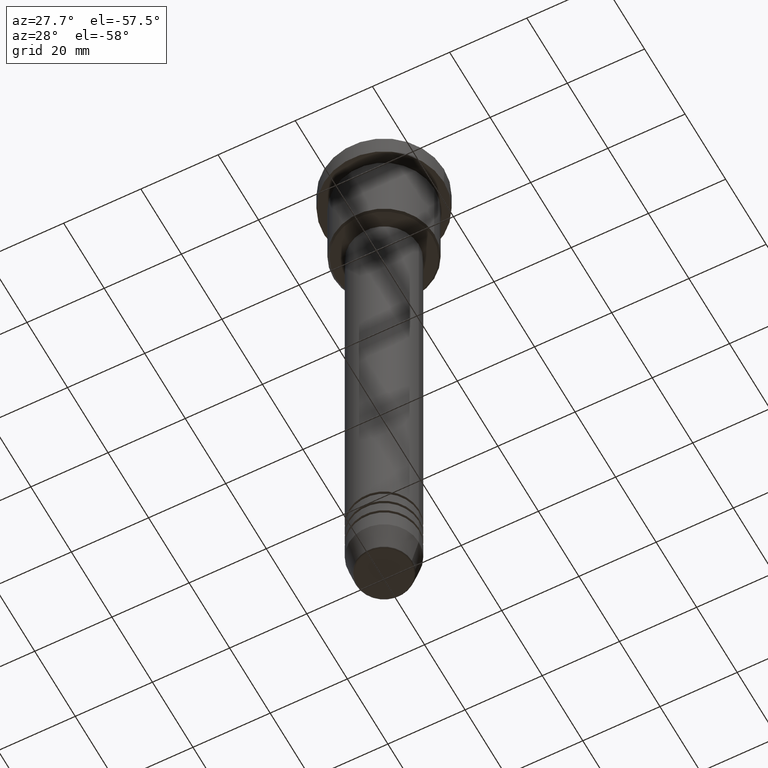
[diagram: clean part render]
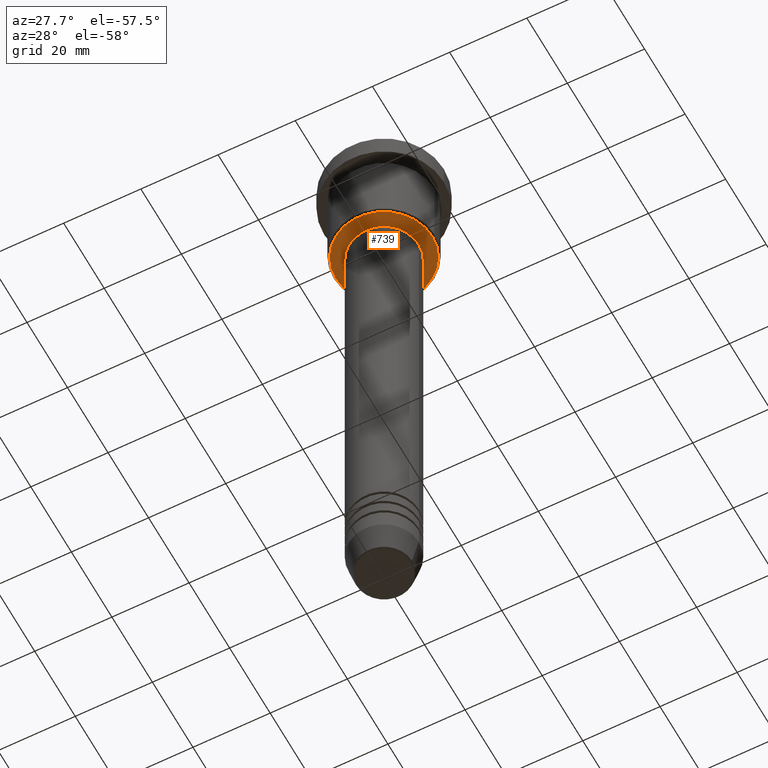
[diagram: same view with one face highlighted and labeled with its STEP entity id]
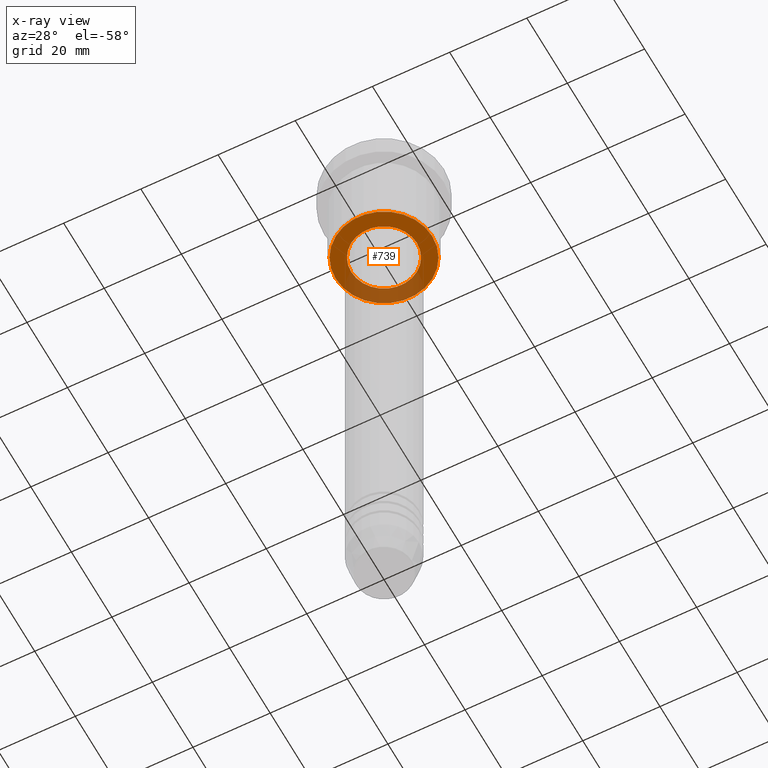
[diagram: x-ray of the same camera — body ghosted, the highlighted face saturated]
A machine part, auxiliary view. The second image highlights one B-rep face of the part: STEP entity #739.
The next image is the same camera in x-ray: the body ghosted, the highlighted face saturated — about 30% of this face is hidden behind the body in this view.
In plain terms, the highlighted planar face has unit normal (0, 0, -1).
Its self-contained STEP definition (entity closure, byte-faithful):
#32 = FACE_BOUND ( 'NONE', #346, .T. ) ;
#37 = DIRECTION ( 'NONE',  ( -1.000000000000000000, 0.000000000000000000, -0.000000000000000000 ) ) ;
#93 = DIRECTION ( 'NONE',  ( -1.000000000000000000, 0.000000000000000000, 0.000000000000000000 ) ) ;
#127 = EDGE_CURVE ( 'NONE', #732, #515, #1076, .T. ) ;
#179 = CARTESIAN_POINT ( 'NONE',  ( 12.49999999999997158, 0.000000000000000000, -27.00000000000001776 ) ) ;
#181 = DIRECTION ( 'NONE',  ( 0.000000000000000000, 0.000000000000000000, -1.000000000000000000 ) ) ;
#190 = CIRCLE ( 'NONE', #752, 12.49999999999997158 ) ;
#226 = CIRCLE ( 'NONE', #454, 8.500000000000000000 ) ;
#270 = CARTESIAN_POINT ( 'NONE',  ( 0.000000000000000000, 0.000000000000000000, -27.00000000000001776 ) ) ;
#294 = ORIENTED_EDGE ( 'NONE', *, *, #127, .T. ) ;
#346 = EDGE_LOOP ( 'NONE', ( #294, #1039 ) ) ;
#356 = CIRCLE ( 'NONE', #1025, 12.49999999999997158 ) ;
#402 = DIRECTION ( 'NONE',  ( 1.000000000000000000, 0.000000000000000000, 0.000000000000000000 ) ) ;
#423 = VERTEX_POINT ( 'NONE', #717 ) ;
#454 = AXIS2_PLACEMENT_3D ( 'NONE', #935, #952, #402 ) ;
#511 = CARTESIAN_POINT ( 'NONE',  ( 0.000000000000000000, 0.000000000000000000, -27.00000000000001776 ) ) ;
#515 = VERTEX_POINT ( 'NONE', #1063 ) ;
#538 = EDGE_CURVE ( 'NONE', #423, #1160, #190, .T. ) ;
#566 = ORIENTED_EDGE ( 'NONE', *, *, #573, .T. ) ;
#573 = EDGE_CURVE ( 'NONE', #1160, #423, #356, .T. ) ;
#590 = AXIS2_PLACEMENT_3D ( 'NONE', #511, #1088, #716 ) ;
#668 = PLANE ( 'NONE',  #843 ) ;
#716 = DIRECTION ( 'NONE',  ( 1.000000000000000000, 0.000000000000000000, 0.000000000000000000 ) ) ;
#717 = CARTESIAN_POINT ( 'NONE',  ( -12.49999999999997158, 1.561424668912873533E-15, -27.00000000000001776 ) ) ;
#732 = VERTEX_POINT ( 'NONE', #1028 ) ;
#739 = ADVANCED_FACE ( 'NONE', ( #1120, #32 ), #668, .T. ) ;
#744 = CARTESIAN_POINT ( 'NONE',  ( 0.000000000000000000, 0.000000000000000000, -27.00000000000001776 ) ) ;
#752 = AXIS2_PLACEMENT_3D ( 'NONE', #270, #181, #93 ) ;
#843 = AXIS2_PLACEMENT_3D ( 'NONE', #865, #1048, #37 ) ;
#850 = ORIENTED_EDGE ( 'NONE', *, *, #538, .T. ) ;
#865 = CARTESIAN_POINT ( 'NONE',  ( 0.000000000000000000, 13.00000000000000000, -27.00000000000001776 ) ) ;
#927 = DIRECTION ( 'NONE',  ( -1.000000000000000000, 0.000000000000000000, 0.000000000000000000 ) ) ;
#935 = CARTESIAN_POINT ( 'NONE',  ( 0.000000000000000000, 0.000000000000000000, -27.00000000000001776 ) ) ;
#952 = DIRECTION ( 'NONE',  ( -0.000000000000000000, -0.000000000000000000, 1.000000000000000000 ) ) ;
#954 = EDGE_CURVE ( 'NONE', #515, #732, #226, .T. ) ;
#1015 = DIRECTION ( 'NONE',  ( 0.000000000000000000, 0.000000000000000000, -1.000000000000000000 ) ) ;
#1025 = AXIS2_PLACEMENT_3D ( 'NONE', #744, #1015, #927 ) ;
#1028 = CARTESIAN_POINT ( 'NONE',  ( 8.500000000000000000, 0.000000000000000000, -27.00000000000001776 ) ) ;
#1039 = ORIENTED_EDGE ( 'NONE', *, *, #954, .T. ) ;
#1048 = DIRECTION ( 'NONE',  ( 0.000000000000000000, 0.000000000000000000, -1.000000000000000000 ) ) ;
#1063 = CARTESIAN_POINT ( 'NONE',  ( -8.500000000000000000, 1.040949779275250140E-15, -27.00000000000001776 ) ) ;
#1076 = CIRCLE ( 'NONE', #590, 8.500000000000000000 ) ;
#1088 = DIRECTION ( 'NONE',  ( -0.000000000000000000, -0.000000000000000000, 1.000000000000000000 ) ) ;
#1118 = EDGE_LOOP ( 'NONE', ( #566, #850 ) ) ;
#1120 = FACE_OUTER_BOUND ( 'NONE', #1118, .T. ) ;
#1160 = VERTEX_POINT ( 'NONE', #179 ) ;